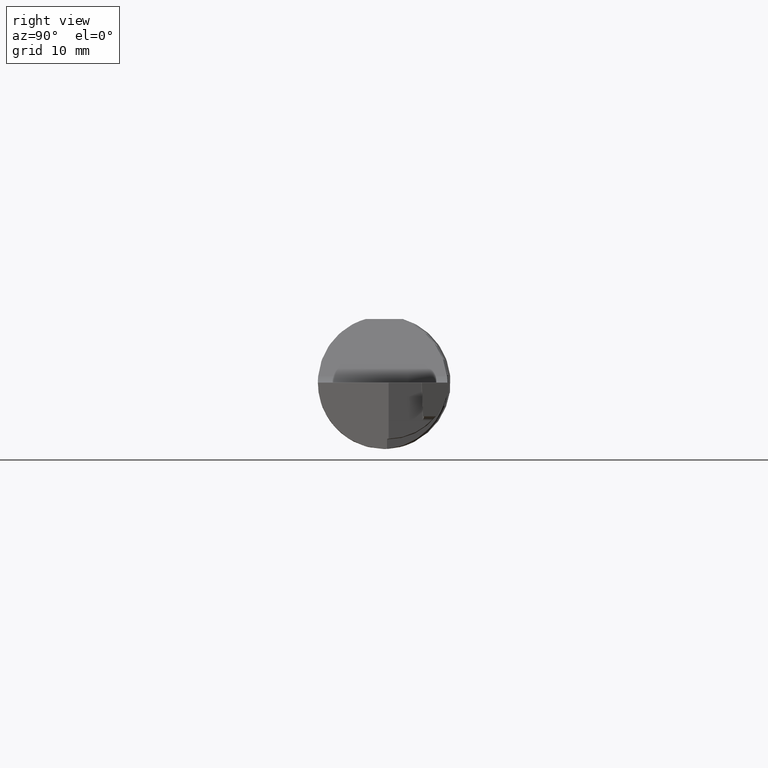
[diagram: clean part render]
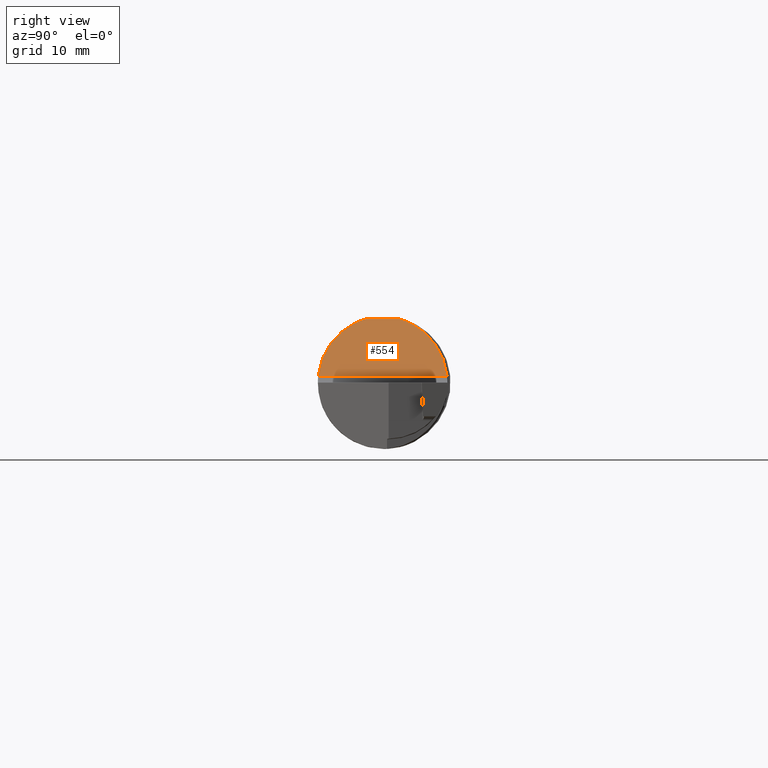
[diagram: same view with one face highlighted and labeled with its STEP entity id]
A machine part, right view. The second image highlights one B-rep face of the part: STEP entity #554.
In plain terms, the highlighted planar face has unit normal (0.7071, -0, 0.7071).
Its self-contained STEP definition (entity closure, byte-faithful):
#17 = ORIENTED_EDGE ( 'NONE', *, *, #678, .F. ) ;
#20 = EDGE_CURVE ( 'NONE', #408, #60, #1020, .T. ) ;
#26 = CARTESIAN_POINT ( 'NONE',  ( 2.689999999999997282, 0.08836216410823956313, 0.3598500000000000587 ) ) ;
#60 = VERTEX_POINT ( 'NONE', #568 ) ;
#152 = DIRECTION ( 'NONE',  ( 0.7071067811865440200, 0.000000000000000000, -0.7071067811865509034 ) ) ;
#164 = LINE ( 'NONE', #394, #231 ) ;
#204 = CARTESIAN_POINT ( 'NONE',  ( 2.734266267726560784, -0.2567163625501296398, 0.3155837322734360018 ) ) ;
#225 = VERTEX_POINT ( 'NONE', #924 ) ;
#231 = VECTOR ( 'NONE', #316, 39.37007874015748143 ) ;
#239 =( BOUNDED_CURVE ( )  B_SPLINE_CURVE ( 3, ( #851, #287, #204, #935 ),
 .UNSPECIFIED., .F., .F. ) 
 B_SPLINE_CURVE_WITH_KNOTS ( ( 4, 4 ),
 ( 4.810215078472481309, 5.999334037848846002 ),
 .UNSPECIFIED. ) 
 CURVE ( )  GEOMETRIC_REPRESENTATION_ITEM ( )  RATIONAL_B_SPLINE_CURVE ( ( 1.000000000000000000, 0.8855968893122885266, 0.8855968893122885266, 1.000000000000000000 ) ) 
 REPRESENTATION_ITEM ( '' )  );
#246 = CARTESIAN_POINT ( 'NONE',  ( 3.013238347648311333, 0.3560577416285020114, 0.03661165235168205301 ) ) ;
#257 = ORIENTED_EDGE ( 'NONE', *, *, #20, .T. ) ;
#287 = CARTESIAN_POINT ( 'NONE',  ( 2.855931234240211225, -0.3576197633839645618, 0.1939187657597854497 ) ) ;
#316 = DIRECTION ( 'NONE',  ( -0.000000000000000000, 1.000000000000000000, 0.000000000000000000 ) ) ;
#327 = CARTESIAN_POINT ( 'NONE',  ( 3.013238347648311333, 0.3560577416285020114, 0.03661165235168205301 ) ) ;
#394 = CARTESIAN_POINT ( 'NONE',  ( 2.689999999999997282, 0.1049785692415360905, 0.3598500000000000587 ) ) ;
#408 = VERTEX_POINT ( 'NONE', #246 ) ;
#484 = DIRECTION ( 'NONE',  ( 0.7071067811865510144, -0.000000000000000000, 0.7071067811865441310 ) ) ;
#554 = ADVANCED_FACE ( 'NONE', ( #721 ), #571, .T. ) ;
#568 = CARTESIAN_POINT ( 'NONE',  ( 2.689999999999997282, 0.08836216410823956313, 0.3598500000000000587 ) ) ;
#571 = PLANE ( 'NONE',  #926 ) ;
#585 = CARTESIAN_POINT ( 'NONE',  ( 2.856066336462941724, 0.3406392102109843112, 0.1937836635370545346 ) ) ;
#623 = ORIENTED_EDGE ( 'NONE', *, *, #707, .T. ) ;
#644 = CARTESIAN_POINT ( 'NONE',  ( 3.013238347648311777, 0.4748500000000000498, 0.03661165235168222648 ) ) ;
#646 = ORIENTED_EDGE ( 'NONE', *, *, #1021, .F. ) ;
#652 = CARTESIAN_POINT ( 'NONE',  ( 2.734435425775913586, 0.2399084116607304029, 0.3154145742240833661 ) ) ;
#678 = EDGE_CURVE ( 'NONE', #1026, #60, #164, .T. ) ;
#707 = EDGE_CURVE ( 'NONE', #225, #408, #784, .T. ) ;
#721 = FACE_OUTER_BOUND ( 'NONE', #900, .T. ) ;
#784 = LINE ( 'NONE', #644, #856 ) ;
#805 = DIRECTION ( 'NONE',  ( -0.000000000000000000, 1.000000000000000000, -0.000000000000000000 ) ) ;
#851 = CARTESIAN_POINT ( 'NONE',  ( 3.013238347648311777, -0.3730577829399617240, 0.03661165235168221260 ) ) ;
#856 = VECTOR ( 'NONE', #805, 39.37007874015748143 ) ;
#900 = EDGE_LOOP ( 'NONE', ( #623, #257, #17, #646 ) ) ;
#923 = CARTESIAN_POINT ( 'NONE',  ( 2.689999999999997282, -0.1049785692415360905, 0.3598500000000000587 ) ) ;
#924 = CARTESIAN_POINT ( 'NONE',  ( 3.013238347648311777, -0.3730577829399617240, 0.03661165235168221260 ) ) ;
#926 = AXIS2_PLACEMENT_3D ( 'NONE', #965, #484, #152 ) ;
#935 = CARTESIAN_POINT ( 'NONE',  ( 2.689999999999997282, -0.1049785692415360905, 0.3598500000000000587 ) ) ;
#965 = CARTESIAN_POINT ( 'NONE',  ( 3.049999999999999822, 0.4748500000000000498, -0.0001500000000062119774 ) ) ;
#1020 =( BOUNDED_CURVE ( )  B_SPLINE_CURVE ( 3, ( #327, #585, #652, #26 ),
 .UNSPECIFIED., .F., .T. ) 
 B_SPLINE_CURVE_WITH_KNOTS ( ( 4, 4 ),
 ( 4.810175822803776313, 5.997966107572837657 ),
 .UNSPECIFIED. ) 
 CURVE ( )  GEOMETRIC_REPRESENTATION_ITEM ( )  RATIONAL_B_SPLINE_CURVE ( ( 1.000000000000000000, 0.8858448504099136755, 0.8858448504099136755, 1.000000000000000000 ) ) 
 REPRESENTATION_ITEM ( '' )  );
#1021 = EDGE_CURVE ( 'NONE', #225, #1026, #239, .T. ) ;
#1026 = VERTEX_POINT ( 'NONE', #923 ) ;